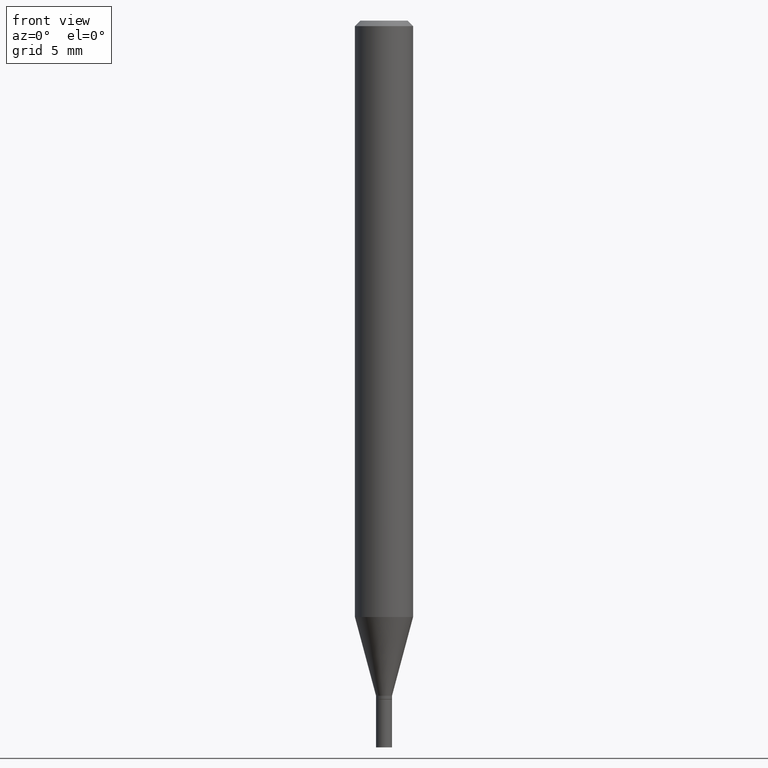
[diagram: clean part render]
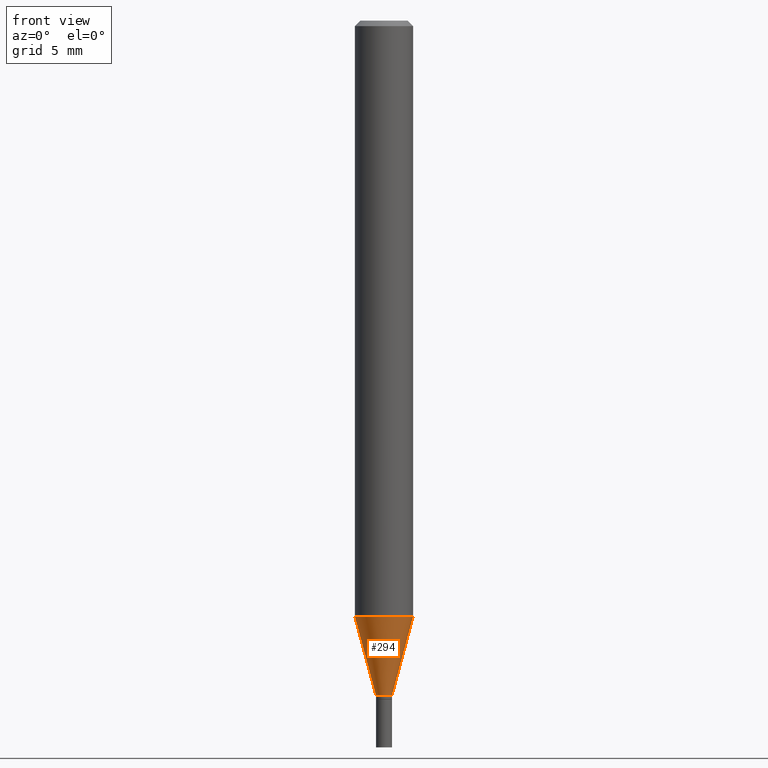
[diagram: same view with one face highlighted and labeled with its STEP entity id]
A machine part, front view. The second image highlights one B-rep face of the part: STEP entity #294.
In plain terms, the highlighted conical surface has half-angle 15 deg.
Its self-contained STEP definition (entity closure, byte-faithful):
#3 = VERTEX_POINT ( 'NONE', #408 ) ;
#29 = EDGE_CURVE ( 'NONE', #271, #3, #280, .T. ) ;
#33 = CARTESIAN_POINT ( 'NONE',  ( 0.02165000000000047442, -6.535354770046602662E-15, -1.828500000000000014 ) ) ;
#49 = CARTESIAN_POINT ( 'NONE',  ( 0.07875000000000001443, -6.190046912603718484E-15, -1.615399898887819097 ) ) ;
#50 = AXIS2_PLACEMENT_3D ( 'NONE', #386, #64, #387 ) ;
#64 = DIRECTION ( 'NONE',  ( -2.445468806185136597E-29, 3.491481338843145583E-15, 1.000000000000000000 ) ) ;
#69 = VERTEX_POINT ( 'NONE', #49 ) ;
#83 = AXIS2_PLACEMENT_3D ( 'NONE', #106, #247, #357 ) ;
#85 = ORIENTED_EDGE ( 'NONE', *, *, #426, .T. ) ;
#95 = DIRECTION ( 'NONE',  ( -0.2588190451025211836, 5.211531920934547886E-15, 0.9659258262890679791 ) ) ;
#97 = AXIS2_PLACEMENT_3D ( 'NONE', #261, #120, #194 ) ;
#106 = CARTESIAN_POINT ( 'NONE',  ( 4.471539712109521882E-29, -6.384173628074691775E-15, -1.828500000000000014 ) ) ;
#120 = DIRECTION ( 'NONE',  ( -2.445468806185136597E-29, 3.491481338843145583E-15, 1.000000000000000000 ) ) ;
#124 = EDGE_LOOP ( 'NONE', ( #336, #302, #85, #156 ) ) ;
#144 = VECTOR ( 'NONE', #332, 39.37007874015748854 ) ;
#156 = ORIENTED_EDGE ( 'NONE', *, *, #222, .F. ) ;
#182 = CIRCLE ( 'NONE', #50, 0.07875000000000000056 ) ;
#194 = DIRECTION ( 'NONE',  ( 1.000000000000000000, -6.982962677686249356E-15, 0.000000000000000000 ) ) ;
#216 = VERTEX_POINT ( 'NONE', #324 ) ;
#222 = EDGE_CURVE ( 'NONE', #3, #69, #182, .T. ) ;
#236 = EDGE_CURVE ( 'NONE', #271, #216, #359, .T. ) ;
#247 = DIRECTION ( 'NONE',  ( -2.445468806185136597E-29, 3.491481338843145583E-15, 1.000000000000000000 ) ) ;
#261 = CARTESIAN_POINT ( 'NONE',  ( 4.471539712109521882E-29, -6.384173628074691775E-15, -1.828500000000000014 ) ) ;
#264 = LINE ( 'NONE', #33, #144 ) ;
#271 = VERTEX_POINT ( 'NONE', #460 ) ;
#280 = LINE ( 'NONE', #448, #457 ) ;
#294 = ADVANCED_FACE ( 'NONE', ( #295 ), #337, .T. ) ;
#295 = FACE_OUTER_BOUND ( 'NONE', #124, .T. ) ;
#302 = ORIENTED_EDGE ( 'NONE', *, *, #236, .T. ) ;
#324 = CARTESIAN_POINT ( 'NONE',  ( 0.02165000000000047442, -6.535354770046602662E-15, -1.828500000000000014 ) ) ;
#332 = DIRECTION ( 'NONE',  ( 0.2588190451025211836, 1.565188264969622559E-15, 0.9659258262890679791 ) ) ;
#336 = ORIENTED_EDGE ( 'NONE', *, *, #29, .F. ) ;
#337 = CONICAL_SURFACE ( 'NONE', #97, 0.02165000000000047442, 0.2617993877991499074 ) ;
#357 = DIRECTION ( 'NONE',  ( 1.000000000000000000, -6.982962677686249356E-15, 0.000000000000000000 ) ) ;
#359 = CIRCLE ( 'NONE', #83, 0.02165000000000047442 ) ;
#386 = CARTESIAN_POINT ( 'NONE',  ( 3.950410062244785597E-29, -5.640138601735924349E-15, -1.615399898887819097 ) ) ;
#387 = DIRECTION ( 'NONE',  ( 1.000000000000000000, -6.982962677686261977E-15, 0.000000000000000000 ) ) ;
#408 = CARTESIAN_POINT ( 'NONE',  ( -0.07875000000000001443, -5.080586197324846336E-15, -1.615399898887819097 ) ) ;
#426 = EDGE_CURVE ( 'NONE', #216, #69, #264, .T. ) ;
#448 = CARTESIAN_POINT ( 'NONE',  ( -0.02165000000000047442, -6.230341125782626517E-15, -1.828500000000000014 ) ) ;
#457 = VECTOR ( 'NONE', #95, 39.37007874015748854 ) ;
#460 = CARTESIAN_POINT ( 'NONE',  ( -0.02165000000000047442, -5.655463661553737215E-15, -1.828500000000000014 ) ) ;